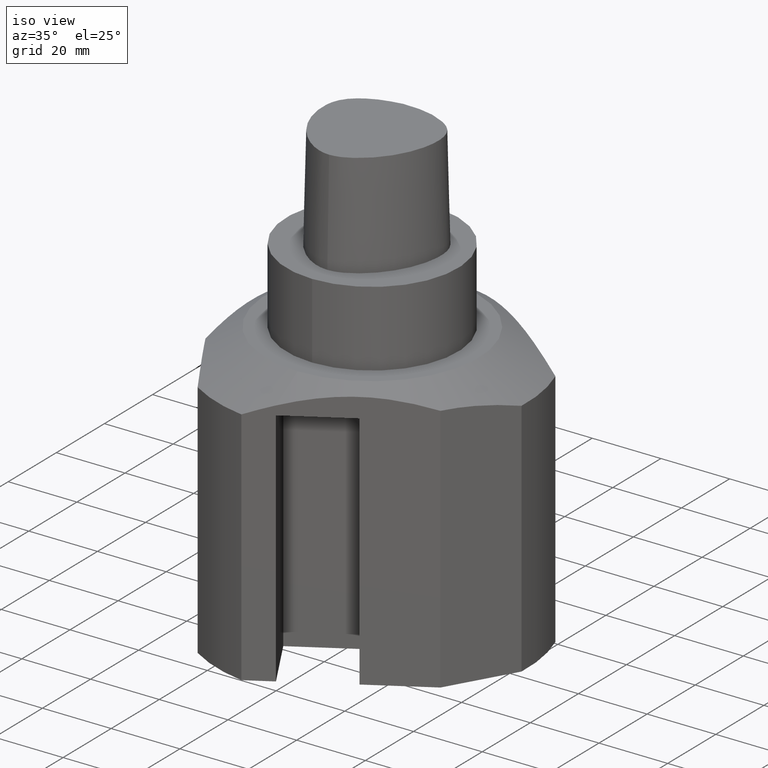
[diagram: clean part render]
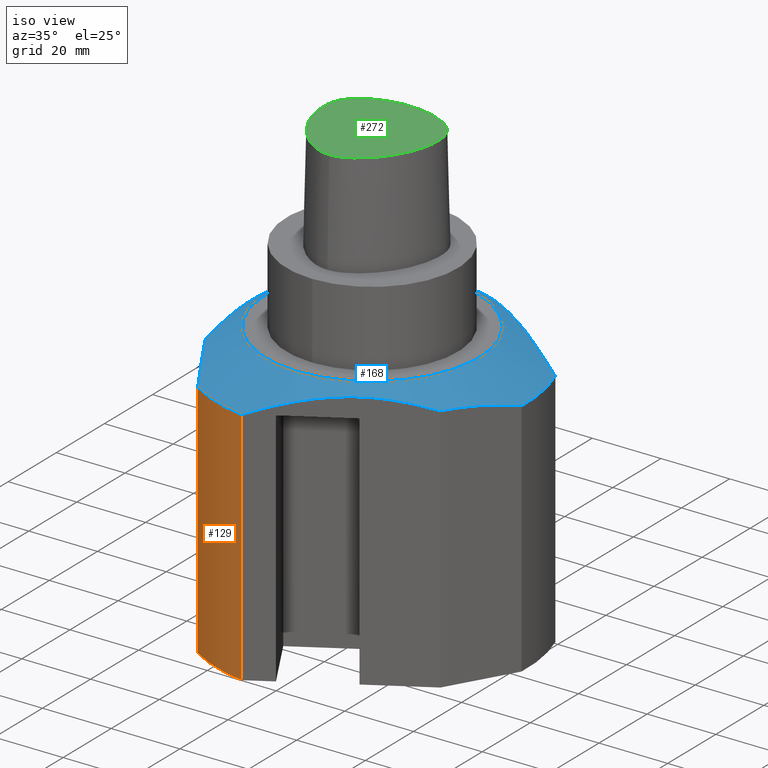
[diagram: same view with three faces highlighted in distinct colors, each labeled with its STEP entity id]
A machine part, iso view with three faces highlighted in distinct colors.
Their STEP definitions:

[orange] entity #129 — the highlighted cylindrical surface (partial cylindrical patch) has radius 45 mm, axis along (-0, -0, -1).
#129=ADVANCED_FACE('240[2]',(#373),#374,.T.);
#174=EDGE_CURVE('240[2]',#442,#447,#448,.F.);
#199=EDGE_CURVE('240[2]',#483,#419,#484,.F.);
#225=EDGE_CURVE('240[2]',#447,#419,#519,.T.);
#231=EDGE_CURVE('240[2]',#442,#483,#528,.F.);
#373=FACE_OUTER_BOUND('',#686,.T.);
#374=CYLINDRICAL_SURFACE('',#687,45.0);
#419=VERTEX_POINT('',#753);
#442=VERTEX_POINT('',#851);
#447=VERTEX_POINT('',#860);
#448=LINE('',#861,#862);
#483=VERTEX_POINT('',#912);
#484=LINE('',#913,#914);
#519=CIRCLE('',#1064,45.0);
#528=CIRCLE('',#1078,45.0);
#686=EDGE_LOOP('',(#1777,#1778,#1779,#1780));
#687=AXIS2_PLACEMENT_3D('',#1781,#1782,#1783);
#753=CARTESIAN_POINT('',(-24.3332520873291,-37.8535710713599,-30.0829021630708));
#851=CARTESIAN_POINT('',(-6.99489742783143,-44.4530247561864,-99.9999999999999));
#860=CARTESIAN_POINT('',(-6.99489742783153,-44.4530247561863,-30.0829021630708));
#861=CARTESIAN_POINT('',(-6.99489742783153,-44.4530247561863,-63.0414510815353));
#862=VECTOR('',#1846,1.0);
#912=CARTESIAN_POINT('',(-24.3332520873291,-37.8535710713599,-99.9999999999999));
#913=CARTESIAN_POINT('',(-24.3332520873291,-37.8535710713599,-63.0414510815353));
#914=VECTOR('',#1877,1.0);
#1064=AXIS2_PLACEMENT_3D('',#1919,#1920,#1921);
#1078=AXIS2_PLACEMENT_3D('',#1924,#1925,#1926);
#1777=ORIENTED_EDGE('',*,*,#174,.T.);
#1778=ORIENTED_EDGE('',*,*,#225,.T.);
#1779=ORIENTED_EDGE('',*,*,#199,.F.);
#1780=ORIENTED_EDGE('',*,*,#231,.F.);
#1781=CARTESIAN_POINT('',(-3.86017556403034E-015,0.0,-63.0414510815353));
#1782=DIRECTION('',(-6.12323399573677E-017,-1.22464679914735E-016,-1.0));
#1783=DIRECTION('',(-1.22464679914735E-016,-1.0,1.22464679914735E-016));
#1846=DIRECTION('',(-6.12323399573677E-017,-1.22464679914735E-016,-1.0));
#1877=DIRECTION('',(-6.12323399573677E-017,-1.22464679914735E-016,-1.0));
#1919=CARTESIAN_POINT('',(-1.84204649215337E-015,0.0,-30.0829021630707));
#1920=DIRECTION('',(-6.12323399573677E-017,-1.22464679914735E-016,-1.0));
#1921=DIRECTION('',(-1.22464679914735E-016,-1.0,1.22464679914735E-016));
#1924=CARTESIAN_POINT('',(-6.12323399573677E-015,-4.52611686341284E-015,-99.9999999999999));
#1925=DIRECTION('',(6.12323399573677E-017,1.22464679914735E-016,1.0));
#1926=DIRECTION('',(-1.22464679914735E-016,-1.0,1.22464679914735E-016));

[blue] entity #168 — the highlighted conical surface has half-angle 60 deg.
#155=EDGE_CURVE('240[2]',#418,#419,#420,.T.);
#168=ADVANCED_FACE('240[2]',(#438,#439),#440,.T.);
#183=EDGE_CURVE('240[2]',#459,#459,#460,.T.);
#185=EDGE_CURVE('240[2]',#462,#415,#463,.T.);
#225=EDGE_CURVE('240[2]',#447,#419,#519,.T.);
#253=EDGE_CURVE('240[2]',#462,#511,#554,.T.);
#269=EDGE_CURVE('240[2]',#511,#573,#574,.T.);
#278=EDGE_CURVE('240[2]',#525,#418,#584,.T.);
#307=EDGE_CURVE('240[2]',#407,#415,#618,.T.);
#309=EDGE_CURVE('240[2]',#447,#407,#620,.T.);
#313=EDGE_CURVE('240[2]',#525,#573,#624,.T.);
#407=VERTEX_POINT('',#735);
#415=VERTEX_POINT('',#747);
#418=VERTEX_POINT('',#752);
#419=VERTEX_POINT('',#753);
#420=(B_SPLINE_CURVE(3,(#755,#756,#757,#758,#759,#760,#761,#762,#763,#764,#765,#766,#767,#768),.UNSPECIFIED.,.F.,.F.)B_SPLINE_CURVE_WITH_KNOTS((4,2,2,3,3,4),(20.0940538123216,20.4558497072219,22.7215084938325,25.7792034116562,39.2645023501964,41.6811045127562),.UNSPECIFIED.)RATIONAL_B_SPLINE_CURVE((1.0,1.0,1.0,1.0,1.0,1.0,1.0,1.0,0.993923452423998,0.97959064856217,0.957001588414519,0.957001588414519,0.957001588414519,0.957001588414519))BOUNDED_CURVE()REPRESENTATION_ITEM('')GEOMETRIC_REPRESENTATION_ITEM()CURVE());
#438=FACE_BOUND('',#846,.T.);
#439=FACE_BOUND('',#847,.T.);
#440=CONICAL_SURFACE('',#848,37.9999999795539,1.04719755226093);
#447=VERTEX_POINT('',#860);
#459=VERTEX_POINT('',#879);
#460=CIRCLE('',#880,30.9999999591079);
#462=VERTEX_POINT('',#883);
#463=CIRCLE('',#884,45.0);
#511=VERTEX_POINT('',#1050);
#519=CIRCLE('',#1064,45.0);
#525=VERTEX_POINT('',#1073);
#554=(B_SPLINE_CURVE(3,(#1507,#1508,#1509,#1510,#1511,#1512,#1513,#1514,#1515,#1516),.UNSPECIFIED.,.F.,.F.)B_SPLINE_CURVE_WITH_KNOTS((4,3,3,4),(-0.0701450166104607,2.44845535964219,44.6118598380861,50.2285192523095),.UNSPECIFIED.)RATIONAL_B_SPLINE_CURVE((1.0,1.0,1.0,1.0,1.1244176482899,1.14955333864922,1.07540707107798,1.07540707107798,1.07540707107798,1.07540707107798))BOUNDED_CURVE()REPRESENTATION_ITEM('')GEOMETRIC_REPRESENTATION_ITEM()CURVE());
#573=VERTEX_POINT('',#1551);
#574=(B_SPLINE_CURVE(3,(#1553,#1554,#1555,#1556,#1557,#1558,#1559,#1560,#1561,#1562,#1563,#1564,#1565,#1566),.UNSPECIFIED.,.F.,.F.)B_SPLINE_CURVE_WITH_KNOTS((4,2,2,3,3,4),(20.0940538078646,20.4558440555277,22.721506369086,25.7792034116468,39.2645023501871,41.6811037494731),.UNSPECIFIED.)RATIONAL_B_SPLINE_CURVE((1.0,1.0,1.0,1.0,1.0,1.0,1.0,1.0,0.993923452424003,0.979590648562182,0.957001588414535,0.957001588414535,0.957001588414535,0.957001588414535))BOUNDED_CURVE()REPRESENTATION_ITEM('')GEOMETRIC_REPRESENTATION_ITEM()CURVE());
#584=(B_SPLINE_CURVE(3,(#1588,#1589,#1590,#1591,#1592,#1593,#1594,#1595,#1596,#1597),.UNSPECIFIED.,.F.,.F.)B_SPLINE_CURVE_WITH_KNOTS((4,3,3,4),(-0.0701450685802136,2.44845535964196,44.6118598380873,50.2285192789122),.UNSPECIFIED.)RATIONAL_B_SPLINE_CURVE((1.0,1.0,1.0,1.0,1.1244176482899,1.14955333864921,1.07540707107796,1.07540707107796,1.07540707107796,1.07540707107796))BOUNDED_CURVE()REPRESENTATION_ITEM('')GEOMETRIC_REPRESENTATION_ITEM()CURVE());
#618=(B_SPLINE_CURVE(3,(#1656,#1657,#1658,#1659,#1660,#1661,#1662,#1663,#1664,#1665,#1666,#1667,#1668,#1669),.UNSPECIFIED.,.F.,.F.)B_SPLINE_CURVE_WITH_KNOTS((4,2,2,3,3,4),(20.0940538123263,20.4558497072119,22.7215084938226,25.7792034116461,39.2645023501854,41.6811045127373),.UNSPECIFIED.)RATIONAL_B_SPLINE_CURVE((1.0,1.0,1.0,1.0,1.0,1.0,1.0,1.0,0.993923452423999,0.979590648562173,0.957001588414525,0.957001588414525,0.957001588414525,0.957001588414525))BOUNDED_CURVE()REPRESENTATION_ITEM('')GEOMETRIC_REPRESENTATION_ITEM()CURVE());
#620=(B_SPLINE_CURVE(3,(#1679,#1680,#1681,#1682,#1683,#1684,#1685,#1686,#1687,#1688),.UNSPECIFIED.,.F.,.F.)B_SPLINE_CURVE_WITH_KNOTS((4,3,3,4),(-0.0669181125361042,2.44845535964227,44.6118598380913,50.2278147855868),.UNSPECIFIED.)RATIONAL_B_SPLINE_CURVE((1.0,1.0,1.0,1.0,1.12441764828992,1.14955333864924,1.07540707107797,1.07540707107797,1.07540707107797,1.07540707107797))BOUNDED_CURVE()REPRESENTATION_ITEM('')GEOMETRIC_REPRESENTATION_ITEM()CURVE());
#624=CIRCLE('',#1701,45.0);
#735=CARTESIAN_POINT('',(34.2820323027617,-20.6217782649039,-27.1998706638681));
#747=CARTESIAN_POINT('',(44.9487802154216,-2.14642892864737,-30.0829021630709));
#752=CARTESIAN_POINT('',(-35.0000000000002,-19.3782217350844,-27.1998706638656));
#753=CARTESIAN_POINT('',(-24.3332520873291,-37.8535710713599,-30.0829021630708));
#755=CARTESIAN_POINT('',(-35.0000000000002,-19.3782217350844,-27.1998706638656));
#756=CARTESIAN_POINT('',(-34.9431193056617,-19.4767419876484,-27.1986919477476));
#757=CARTESIAN_POINT('',(-34.8862319839905,-19.5752737190894,-27.1977931540001));
#758=CARTESIAN_POINT('',(-34.473042387391,-20.2909390935586,-27.1933008746717));
#759=CARTESIAN_POINT('',(-34.1169930980205,-20.9076345527472,-27.2004221838355));
#760=CARTESIAN_POINT('',(-33.2801076776061,-22.3571626210185,-27.2429105805491));
#761=CARTESIAN_POINT('',(-32.8003026951803,-23.1882092283046,-27.287223794418));
#762=CARTESIAN_POINT('',(-32.3205080756848,-24.0192378864692,-27.3510757373913));
#763=CARTESIAN_POINT('',(-30.1915414078486,-27.706716322782,-27.6344025041848));
#764=CARTESIAN_POINT('',(-27.9807172489667,-31.5359760925662,-28.3166111677263));
#765=CARTESIAN_POINT('',(-25.6271379627417,-35.6124949959494,-29.4332803070717));
#766=CARTESIAN_POINT('',(-25.1954147634724,-36.36026151189,-29.6381138455827));
#767=CARTESIAN_POINT('',(-24.7640073854098,-37.1074810094546,-29.8550348946338));
#768=CARTESIAN_POINT('',(-24.3332520873291,-37.8535710713599,-30.0829021630708));
#846=EDGE_LOOP('',(#1831));
#847=EDGE_LOOP('',(#1832,#1833,#1834,#1835,#1836,#1837,#1838,#1839,#1840));
#848=AXIS2_PLACEMENT_3D('',#1841,#1842,#1843);
#860=CARTESIAN_POINT('',(-6.99489742783153,-44.4530247561863,-30.0829021630708));
#879=CARTESIAN_POINT('',(-5.14351645286827E-015,-30.9999999591079,-21.9999983906745));
#880=AXIS2_PLACEMENT_3D('',#1861,#1862,#1863);
#883=CARTESIAN_POINT('',(41.9948974278316,16.1687535087248,-30.0829021630708));
#884=AXIS2_PLACEMENT_3D('',#1864,#1865,#1866);
#1050=CARTESIAN_POINT('',(0.717967697241191,40.0,-27.1998706638668));
#1064=AXIS2_PLACEMENT_3D('',#1919,#1920,#1921);
#1073=CARTESIAN_POINT('',(-35.0000000000002,28.2842712474617,-30.0829021630708));
#1507=CARTESIAN_POINT('',(41.9948974278316,16.1687535087248,-30.0829021630708));
#1508=CARTESIAN_POINT('',(41.130594324005,16.6677591383805,-29.7207364835364));
#1509=CARTESIAN_POINT('',(40.267940886053,17.1658123329994,-29.3708683884862));
#1510=CARTESIAN_POINT('',(39.4089023002066,17.661778491782,-29.0353842587267));
#1511=CARTESIAN_POINT('',(26.6191708667856,25.0459333777298,-24.0405540025619));
#1512=CARTESIAN_POINT('',(16.2809273982158,31.0147210272559,-23.1627441798841));
#1513=CARTESIAN_POINT('',(5.35898384862728,37.3205080756841,-25.8701519957357));
#1514=CARTESIAN_POINT('',(3.80373966460774,38.2184287239833,-26.2556768100927));
#1515=CARTESIAN_POINT('',(2.25520462588306,39.1124758454405,-26.7034686547264));
#1516=CARTESIAN_POINT('',(0.717967697241191,40.0,-27.1998706638668));
#1551=CARTESIAN_POINT('',(-20.6155281280886,39.9999999999998,-30.0829021630708));
#1553=CARTESIAN_POINT('',(0.717967697241191,40.0,-27.1998706638668));
#1554=CARTESIAN_POINT('',(0.604208083997899,40.0,-27.1986919661447));
#1555=CARTESIAN_POINT('',(0.490435216400193,40.0000000000001,-27.1977931820547));
#1556=CARTESIAN_POINT('',(-0.335943309586245,40.0,-27.1933008428183));
#1557=CARTESIAN_POINT('',(-1.04804299576905,40.0,-27.2004221253861));
#1558=CARTESIAN_POINT('',(-2.72181561482575,40.0,-27.2429105190265));
#1559=CARTESIAN_POINT('',(-3.68142624558523,40.0,-27.2872237500496));
#1560=CARTESIAN_POINT('',(-4.6410161513777,40.0,-27.3510757373923));
#1561=CARTESIAN_POINT('',(-8.8989494870501,40.0,-27.6344025041856));
#1562=CARTESIAN_POINT('',(-13.3205978048139,39.9999999999999,-28.3166111677268));
#1563=CARTESIAN_POINT('',(-18.0277563772636,39.9999999999998,-29.4332803070719));
#1564=CARTESIAN_POINT('',(-18.8912025030862,39.9999999999998,-29.638113780887));
#1565=CARTESIAN_POINT('',(-19.754017267976,39.9999999999998,-29.8550348248195));
#1566=CARTESIAN_POINT('',(-20.6155281280886,39.9999999999998,-30.0829021630708));
#1588=CARTESIAN_POINT('',(-35.0000000000002,28.2842712474617,-30.0829021630708));
#1589=CARTESIAN_POINT('',(-35.0000000000002,27.2862600087645,-29.7207364910171));
#1590=CARTESIAN_POINT('',(-35.0000000000002,26.2901536193802,-29.3708683954087));
#1591=CARTESIAN_POINT('',(-35.0000000000002,25.298221281347,-29.0353842587268));
#1592=CARTESIAN_POINT('',(-35.0,10.5299115094499,-24.0405540025621));
#1593=CARTESIAN_POINT('',(-35.0000000000001,-1.40766378960363,-23.1627441798846));
#1594=CARTESIAN_POINT('',(-34.9999999999999,-14.0192378864619,-25.8701519957368));
#1595=CARTESIAN_POINT('',(-35.0,-15.8150791915659,-26.2556768119199));
#1596=CARTESIAN_POINT('',(-35.0000000000002,-17.6031734332232,-26.703468656755));
#1597=CARTESIAN_POINT('',(-35.0000000000002,-19.3782217350844,-27.1998706638656));
#1656=CARTESIAN_POINT('',(34.2820323027617,-20.6217782649039,-27.1998706638681));
#1657=CARTESIAN_POINT('',(34.3389129970979,-20.5232580123439,-27.1986919477502));
#1658=CARTESIAN_POINT('',(34.3958003187668,-20.4247262809069,-27.1977931540028));
#1659=CARTESIAN_POINT('',(34.808989915364,-19.7090609064416,-27.1933008746744));
#1660=CARTESIAN_POINT('',(35.1650392047346,-19.092365447253,-27.2004221838382));
#1661=CARTESIAN_POINT('',(36.001924625149,-17.6428373789816,-27.2429105805518));
#1662=CARTESIAN_POINT('',(36.4817296075747,-16.8117907716954,-27.2872237944207));
#1663=CARTESIAN_POINT('',(36.9615242270703,-15.9807621135309,-27.3510757373939));
#1664=CARTESIAN_POINT('',(39.0904908949065,-12.2932836772181,-27.6344025041874));
#1665=CARTESIAN_POINT('',(41.3013150537884,-8.46402390743389,-28.3166111677288));
#1666=CARTESIAN_POINT('',(43.6548943400133,-4.38750500405068,-29.4332803070741));
#1667=CARTESIAN_POINT('',(44.0866175392812,-3.63973848811247,-29.6381138455844));
#1668=CARTESIAN_POINT('',(44.5180249173423,-2.89251899055031,-29.8550348946348));
#1669=CARTESIAN_POINT('',(44.9487802154216,-2.14642892864737,-30.0829021630709));
#1679=CARTESIAN_POINT('',(-6.99489742783153,-44.4530247561863,-30.0829021630708));
#1680=CARTESIAN_POINT('',(-6.12948443364083,-43.9533783310301,-29.7202714103507));
#1681=CARTESIAN_POINT('',(-5.26684026082524,-43.4553304856401,-29.3704385564591));
#1682=CARTESIAN_POINT('',(-4.40890230020661,-42.9599997731288,-29.0353842587267));
#1683=CARTESIAN_POINT('',(8.38082913321504,-35.5758448871789,-24.0405540025613));
#1684=CARTESIAN_POINT('',(18.7190726017925,-29.6070572376497,-23.1627441798854));
#1685=CARTESIAN_POINT('',(29.6410161513818,-23.3012701892196,-25.8701519957391));
#1686=CARTESIAN_POINT('',(31.1960652696687,-22.4034621621722,-26.2556284558367));
#1687=CARTESIAN_POINT('',(32.7446284905711,-21.5093987697254,-26.7034147649677));
#1688=CARTESIAN_POINT('',(34.2820323027617,-20.6217782649039,-27.1998706638681));
#1701=AXIS2_PLACEMENT_3D('',#2028,#2029,#2030);
#1831=ORIENTED_EDGE('',*,*,#183,.T.);
#1832=ORIENTED_EDGE('',*,*,#185,.F.);
#1833=ORIENTED_EDGE('',*,*,#253,.T.);
#1834=ORIENTED_EDGE('',*,*,#269,.T.);
#1835=ORIENTED_EDGE('',*,*,#313,.F.);
#1836=ORIENTED_EDGE('',*,*,#278,.T.);
#1837=ORIENTED_EDGE('',*,*,#155,.T.);
#1838=ORIENTED_EDGE('',*,*,#225,.F.);
#1839=ORIENTED_EDGE('',*,*,#309,.T.);
#1840=ORIENTED_EDGE('',*,*,#307,.T.);
#1841=CARTESIAN_POINT('',(-1.59457893633634E-015,0.0,-26.0414502768726));
#1842=DIRECTION('',(-6.12323399573677E-017,-1.22464679914735E-016,-1.0));
#1843=DIRECTION('',(-1.22464679914735E-016,-1.0,1.22464679914735E-016));
#1861=CARTESIAN_POINT('',(-1.34711138051932E-015,0.0,-21.9999983906745));
#1862=DIRECTION('',(-6.12323399573677E-017,-1.22464679914735E-016,-1.0));
#1863=DIRECTION('',(-1.22464679914735E-016,-1.0,1.22464679914735E-016));
#1864=CARTESIAN_POINT('',(-1.84204649215337E-015,0.0,-30.0829021630707));
#1865=DIRECTION('',(-6.12323399573677E-017,-1.22464679914735E-016,-1.0));
#1866=DIRECTION('',(-1.22464679914735E-016,-1.0,1.22464679914735E-016));
#1919=CARTESIAN_POINT('',(-1.84204649215337E-015,0.0,-30.0829021630707));
#1920=DIRECTION('',(-6.12323399573677E-017,-1.22464679914735E-016,-1.0));
#1921=DIRECTION('',(-1.22464679914735E-016,-1.0,1.22464679914735E-016));
#2028=CARTESIAN_POINT('',(-1.84204649215337E-015,0.0,-30.0829021630707));
#2029=DIRECTION('',(-6.12323399573677E-017,-1.22464679914735E-016,-1.0));
#2030=DIRECTION('',(-1.22464679914735E-016,-1.0,1.22464679914735E-016));

[green] entity #272 — the highlighted planar face has unit normal (-0, 0, 1).
#157=EDGE_CURVE('240[2]',#422,#422,#423,.T.);
#272=ADVANCED_FACE('240[2]',(#577),#578,.T.);
#422=VERTEX_POINT('',#777);
#423=B_SPLINE_CURVE_WITH_KNOTS('',3,(#778,#779,#780,#781,#782,#783,#784,#785,#786,#787,#788,#789,#790,#791,#792,#793,#794,#795,#796,#797,#798,#799,#800,#801,#802,#803,#804,#805,#806,#807,#808,#809,#810,#811,#812,#813,#814,#815,#816,#817,#818,#819,#820,#821,#822,#823,#824,#825,#826),.UNSPECIFIED.,.T.,.F.,(4,1,1,1,1,1,1,1,1,1,1,1,1,1,1,1,1,1,1,1,1,1,1,1,1,1,1,1,1,1,1,1,1,1,1,1,1,1,1,1,1,1,1,1,1,1,4),(0.0,0.023135829350767,0.046149078767971,0.068686553945372,0.09058948843834,0.11187442371895,0.132659030725504,0.153111474090064,0.173428097006866,0.193812703683075,0.214465113334926,0.235566638619369,0.257256396596226,0.279590584305387,0.302476275092963,0.325611612149197,0.348735785989546,0.371826971229282,0.39455923139207,0.416669726533691,0.438154204641074,0.459103554741756,0.479643077908811,0.50010643098029,0.520399705216369,0.54092682403315,0.561890845659905,0.583370991138857,0.605476574502583,0.62820876493626,0.65131550684809,0.674427687768046,0.697531018602722,0.720425222070344,0.742763449220249,0.764449723968905,0.785551037463572,0.806204240231889,0.826588983931571,0.846905402970388,0.867357715119018,0.88814171778586,0.909429413217286,0.931324749020081,0.953885589892717,0.976862732393428,1.0),.UNSPECIFIED.);
#577=FACE_OUTER_BOUND('',#1576,.T.);
#578=PLANE('',#1577);
#777=CARTESIAN_POINT('',(-2.78602932413958E-015,-17.9423775546504,30.0));
#778=CARTESIAN_POINT('',(-2.78602932413958E-015,-17.9423775546504,30.0));
#779=CARTESIAN_POINT('',(-0.814120797978075,-17.9643878187761,30.0));
#780=CARTESIAN_POINT('',(-2.44279318309434,-17.6670056599032,30.0));
#781=CARTESIAN_POINT('',(-4.69065600148019,-16.7591312239375,30.0));
#782=CARTESIAN_POINT('',(-6.73157621234646,-15.527654017863,30.0));
#783=CARTESIAN_POINT('',(-8.55606567082544,-14.0980586872352,30.0));
#784=CARTESIAN_POINT('',(-10.1771160862307,-12.5294920614813,30.0));
#785=CARTESIAN_POINT('',(-11.6098311271326,-10.8549672983455,30.0));
#786=CARTESIAN_POINT('',(-12.8723444784573,-9.09084166630709,30.0));
#787=CARTESIAN_POINT('',(-13.9762474627415,-7.23982146073078,30.0));
#788=CARTESIAN_POINT('',(-14.9241349859217,-5.29636298798718,30.0));
#789=CARTESIAN_POINT('',(-15.7132736469777,-3.25333571586589,30.0));
#790=CARTESIAN_POINT('',(-16.3266313043064,-1.10238675181424,30.0));
#791=CARTESIAN_POINT('',(-16.7327867713303,1.15808256309651,30.0));
#792=CARTESIAN_POINT('',(-16.8801613787167,3.51564121263175,30.0));
#793=CARTESIAN_POINT('',(-16.6855836228514,5.92229128835706,30.0));
#794=CARTESIAN_POINT('',(-16.0281509658443,8.29517868854452,30.0));
#795=CARTESIAN_POINT('',(-14.6640408300166,10.3669104243273,30.0));
#796=CARTESIAN_POINT('',(-12.8332969997264,11.9882678763451,30.0));
#797=CARTESIAN_POINT('',(-10.7856401290832,13.2404482750702,30.0));
#798=CARTESIAN_POINT('',(-8.65298741417579,14.19764142693,30.0));
#799=CARTESIAN_POINT('',(-6.48957622042645,14.9235651413533,30.0));
#800=CARTESIAN_POINT('',(-4.30784954842127,15.2925809723717,30.0));
#801=CARTESIAN_POINT('',(-2.16867899857279,15.8525920055235,30.0));
#802=CARTESIAN_POINT('',(-0.0054980597270801,15.506533819507,30.0));
#803=CARTESIAN_POINT('',(2.15423811148254,15.6758925558313,30.0));
#804=CARTESIAN_POINT('',(4.31367631773855,15.3366483013887,30.0));
#805=CARTESIAN_POINT('',(6.49156913463884,14.9221231752341,30.0));
#806=CARTESIAN_POINT('',(8.65317555043793,14.199841033848,30.0));
#807=CARTESIAN_POINT('',(10.7855591317115,13.2388028674922,30.0));
#808=CARTESIAN_POINT('',(12.8289446834375,11.9844078416963,30.0));
#809=CARTESIAN_POINT('',(14.6809214389867,10.37934328945,30.0));
#810=CARTESIAN_POINT('',(15.9964040236072,8.2800066011603,30.0));
#811=CARTESIAN_POINT('',(16.6999197177274,5.92601467018835,30.0));
#812=CARTESIAN_POINT('',(16.8785470495877,3.51485696104407,30.0));
#813=CARTESIAN_POINT('',(16.7308989568545,1.15864914401018,30.0));
#814=CARTESIAN_POINT('',(16.3270119409732,-1.10262794482625,30.0));
#815=CARTESIAN_POINT('',(15.7138840293007,-3.2534961264856,30.0));
#816=CARTESIAN_POINT('',(14.9244427410538,-5.29647704660132,30.0));
#817=CARTESIAN_POINT('',(13.9756636589241,-7.23950698099947,30.0));
#818=CARTESIAN_POINT('',(12.8724663956831,-9.09088034657933,30.0));
#819=CARTESIAN_POINT('',(11.6099597844916,-10.8551381410581,30.0));
#820=CARTESIAN_POINT('',(10.1759690661341,-12.5282962499649,30.0));
#821=CARTESIAN_POINT('',(8.55887653552809,-14.1013446755591,30.0));
#822=CARTESIAN_POINT('',(6.72595297076831,-15.5205541881092,30.0));
#823=CARTESIAN_POINT('',(4.69995925068727,-16.7729025475684,30.0));
#824=CARTESIAN_POINT('',(2.43523789305481,-17.660279021922,30.0));
#825=CARTESIAN_POINT('',(0.814171408394767,-17.9203659222405,30.0));
#826=CARTESIAN_POINT('',(-2.83508942413959E-015,-17.9423775546504,30.0));
#1576=EDGE_LOOP('',(#1973));
#1577=AXIS2_PLACEMENT_3D('',#1974,#1975,#1976);
#1973=ORIENTED_EDGE('',*,*,#157,.F.);
#1974=CARTESIAN_POINT('',(-0.000657534264248203,-1.65575572608799,30.0));
#1975=DIRECTION('',(-0.0,7.49879891330929E-033,1.0));
#1976=DIRECTION('',(1.0,0.0,0.0));